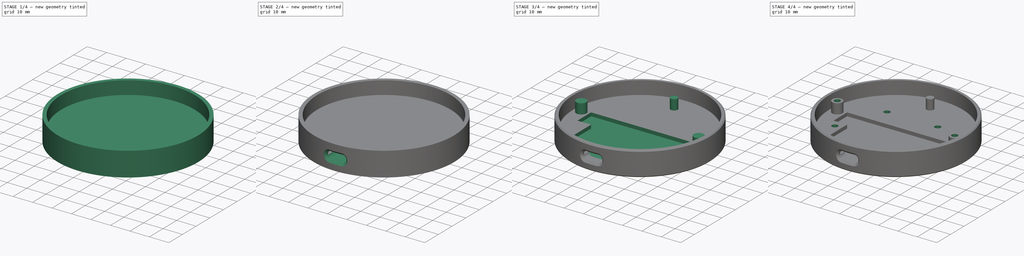
[diagram: build sequence overview — one tinted view per stage of 4, left to right]
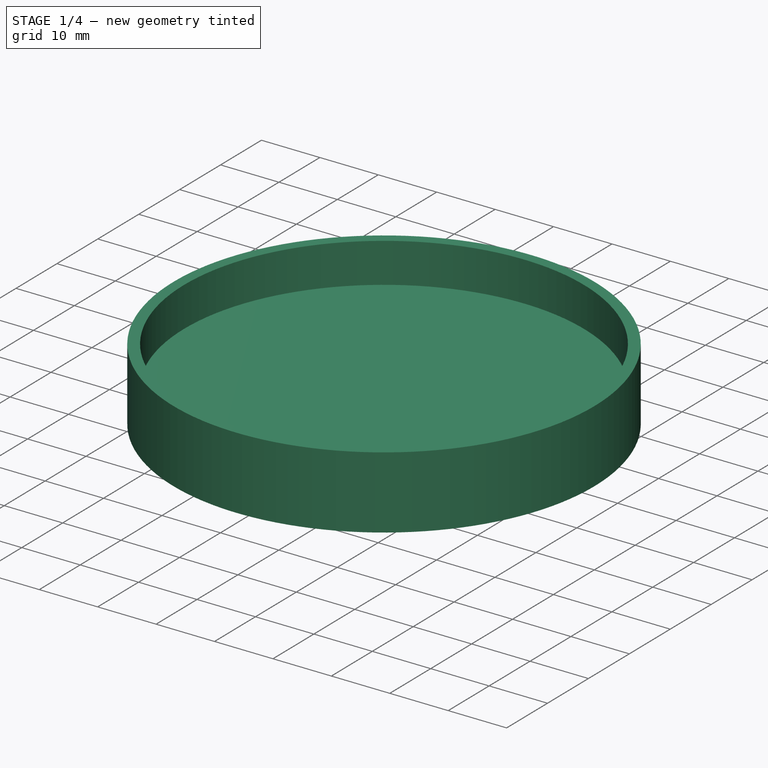
[diagram: stage 1 of 4 — iso view after this stage's code; geometry added in this stage tinted green]
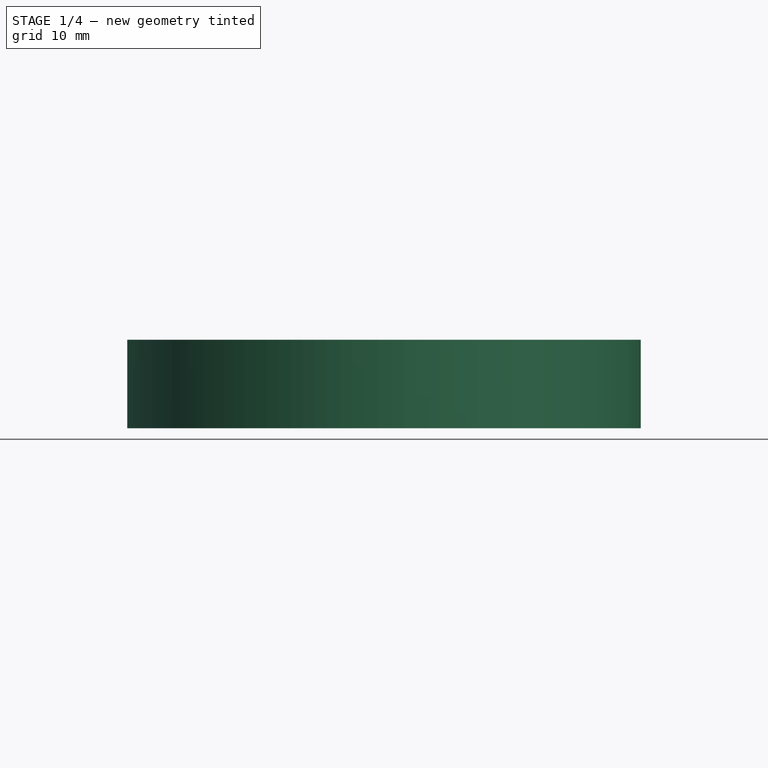
[diagram: stage 1 of 4 — front view after this stage's code; geometry added in this stage tinted green]
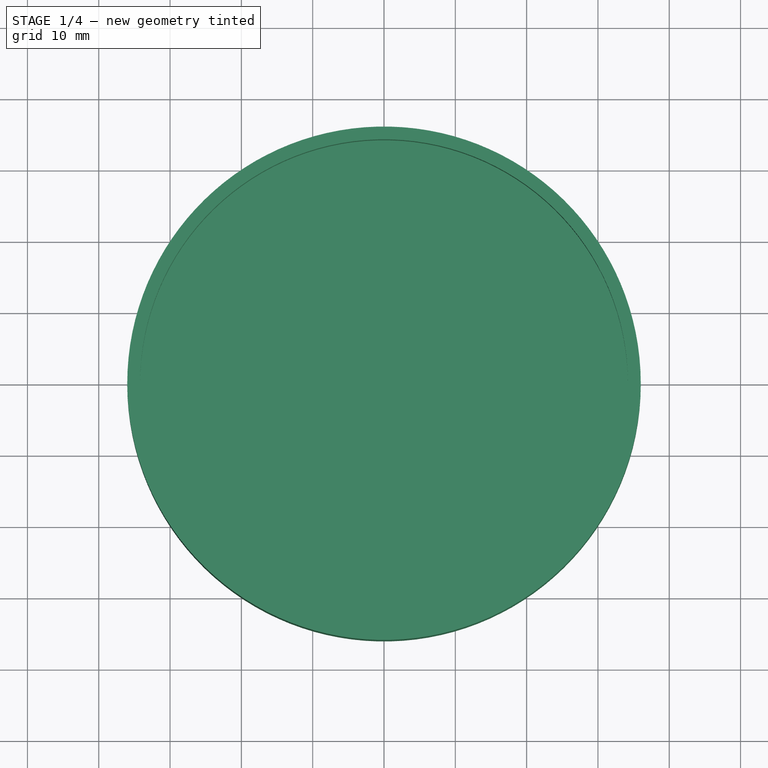
[diagram: stage 1 of 4 — top view after this stage's code; geometry added in this stage tinted green]
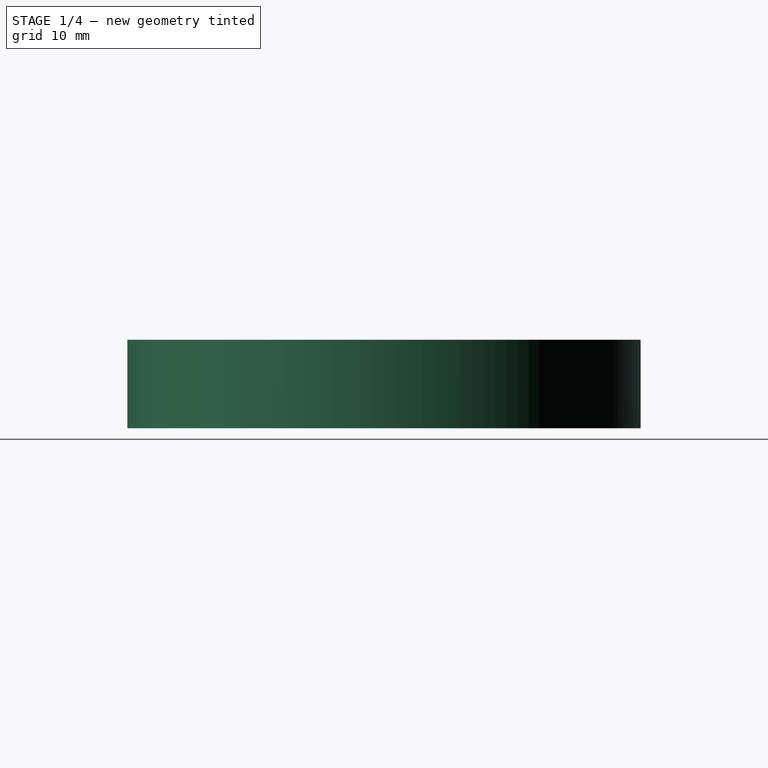
[diagram: stage 1 of 4 — right view after this stage's code; geometry added in this stage tinted green]
FCSTD DOCUMENT  (FreeCAD 0.20R29603 (Git))
Label: case
License: All rights reserved
LicenseURL: http://en.wikipedia.org/wiki/All_rights_reserved
objects: Sketcher::SketchObject×7, PartDesign::Pocket×4, PartDesign::Pad×3, PartDesign::Chamfer×2, PartDesign::Plane×1, PartDesign::Body×1
note: 27 computed .brp shape members not serialized (recipe doc carries the construction recipe); baked Part::Feature solids carry a one-line shape summary decoded from their .brp

FEATURE [Sketcher::SketchObject] Sketch
  FullyConstrained = true
  MapMode = 5
  Support = -> [XY_Plane]
  sketch-geometry (1):
    g0: Circle CenterX=0 CenterY=0 CenterZ=0 NormalX=0 NormalY=0 NormalZ=1 AngleXU=0 Radius=36
  constraints (2):
    c: Coincident(g0,g-1)
    c: Radius(g0) = 36
FEATURE [PartDesign::Pad] Pad  label="base"
  Direction = (0,0,1)
  Length = 5.6
  Length2 = 10
  Profile = -> Sketch
  ReferenceAxis = -> Sketch [N_Axis]
  Type = 0
FEATURE [Sketcher::SketchObject] Sketch001
  ExternalGeometry = -> [Pad]
  FullyConstrained = true
  MapMode = 5
  Placement = pos=(0,0,5.6) rot=(0,0,1;0rad)
  Support = -> [Pad]
  sketch-geometry (2):
    g0: Circle CenterX=0 CenterY=0 CenterZ=0 NormalX=0 NormalY=0 NormalZ=1 AngleXU=0 Radius=34.2
    g1: Circle CenterX=0 CenterY=0 CenterZ=0 NormalX=0 NormalY=0 NormalZ=1 AngleXU=0 Radius=36
  constraints (4):
    c: Coincident(g0,g-1)
    c: Coincident(g1,g0)
    c: Equal(g1,g-3)
    c: Radius(g0) = 34.2
FEATURE [PartDesign::Pad] Pad001  label="walls"
  BaseFeature = -> Pad
  Direction = (0,0,1)
  Length = 6.8
  Length2 = 10
  Profile = -> Sketch001
  ReferenceAxis = -> Sketch001 [N_Axis]
  Type = 0
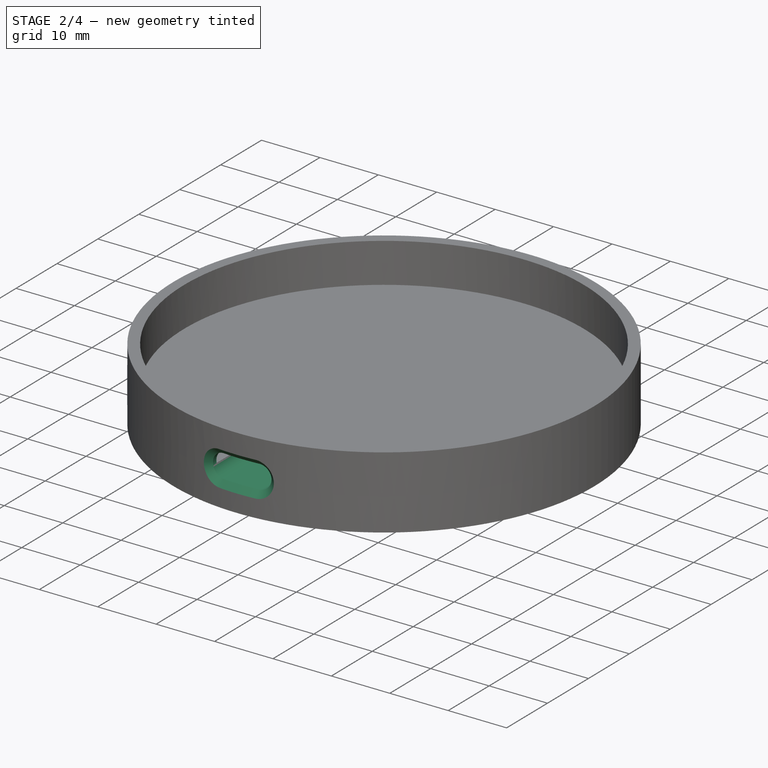
[diagram: stage 2 of 4 — iso view after this stage's code; geometry added in this stage tinted green]
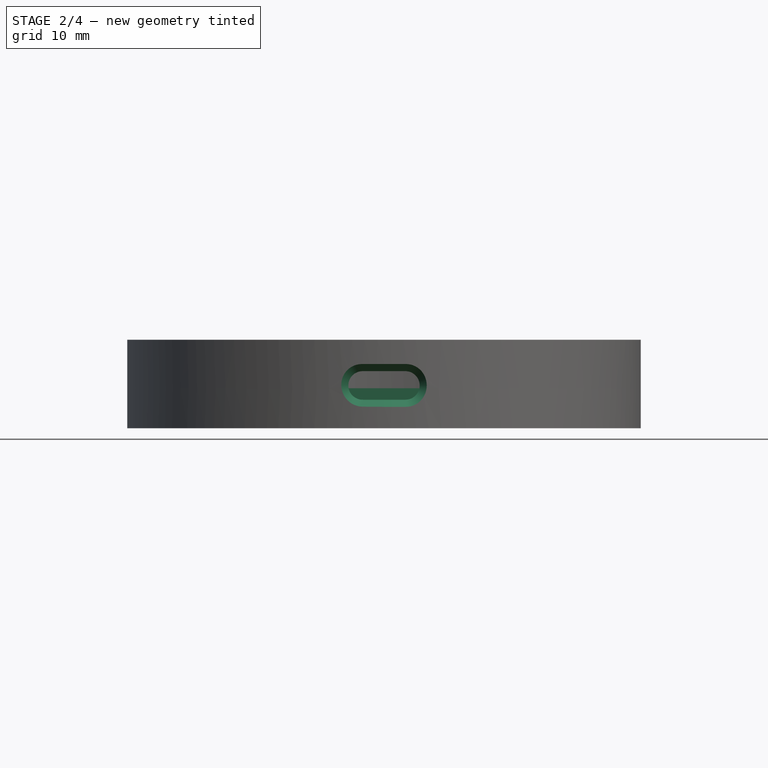
[diagram: stage 2 of 4 — front view after this stage's code; geometry added in this stage tinted green]
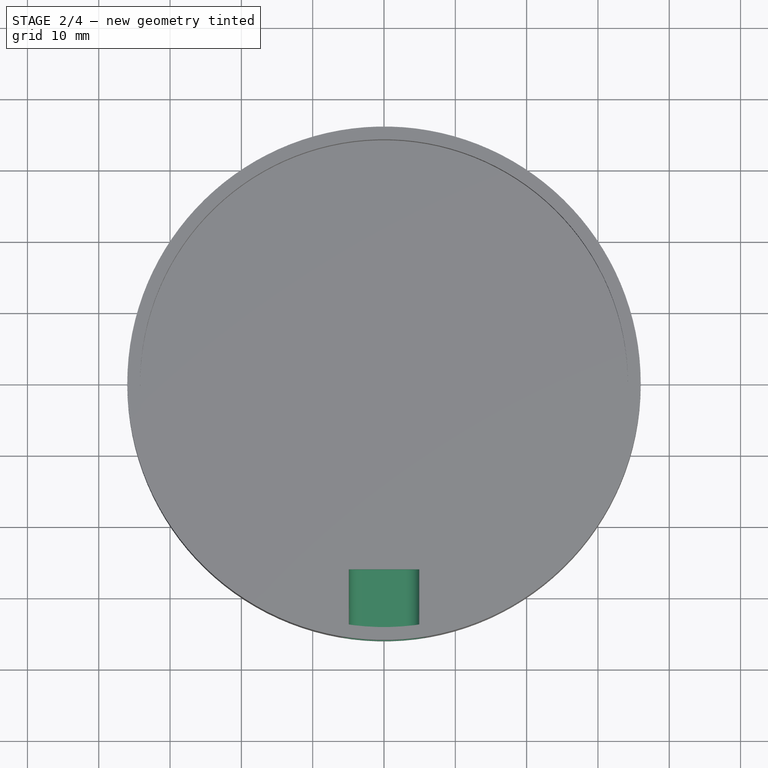
[diagram: stage 2 of 4 — top view after this stage's code; geometry added in this stage tinted green]
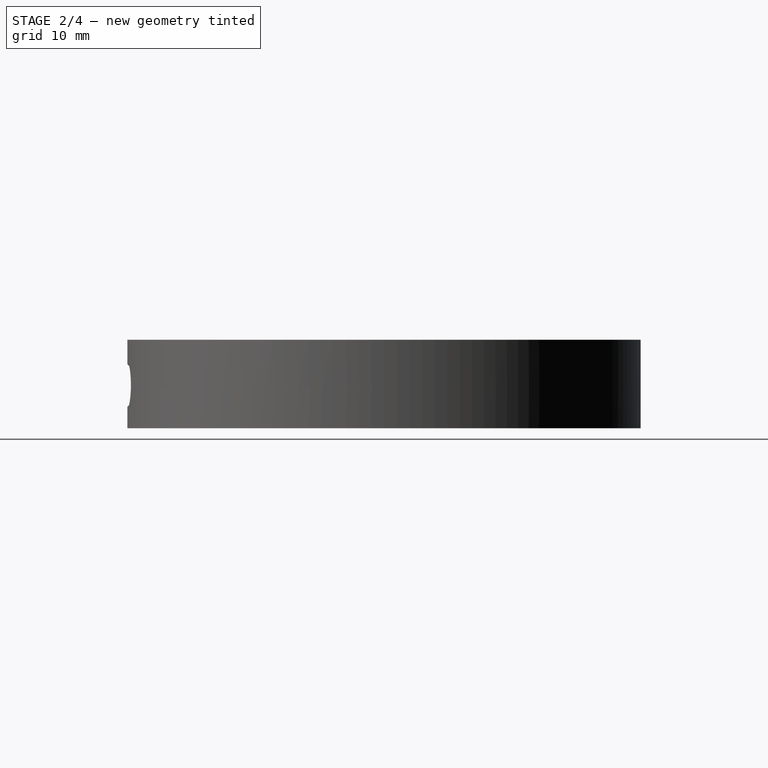
[diagram: stage 2 of 4 — right view after this stage's code; geometry added in this stage tinted green]
FEATURE [PartDesign::Plane] DatumPlane  label="Receptacle-Hole-Start"
  AttachmentOffset = pos=(0,0,36) rot=(0,0,1;0rad)
  Length = 83.9822
  MapMode = 5
  Placement = pos=(0,-36,-8e-15) rot=(1,0,0;1.5708rad)
  ResizeMode = 0
  Support = -> [XZ_Plane]
  Width = 61.9986
FEATURE [Sketcher::SketchObject] Sketch003  label="usbc-outline"
  FullyConstrained = true
  MapMode = 5
  Placement = pos=(0,-36,-8e-15) rot=(1,0,0;1.5708rad)
  Support = -> [DatumPlane]
  sketch-geometry (7):
    g0: LineSegment StartX=0 StartY=6 StartZ=0 EndX=3 EndY=4 EndZ=0
    g1: ArcOfCircle CenterX=-3 CenterY=6 CenterZ=0 NormalX=0 NormalY=0 NormalZ=1 AngleXU=0 Radius=2 StartAngle=1.5708 EndAngle=4.71239
    g2: ArcOfCircle CenterX=3 CenterY=6 CenterZ=0 NormalX=0 NormalY=0 NormalZ=1 AngleXU=0 Radius=2 StartAngle=4.71239 EndAngle=7.85398
    g3: LineSegment StartX=-3 StartY=4 StartZ=0 EndX=3 EndY=4 EndZ=0
    g4: LineSegment StartX=3 StartY=8 StartZ=0 EndX=-3 EndY=8 EndZ=0
    g5: LineSegment StartX=-3 StartY=6 StartZ=0 EndX=3 EndY=6 EndZ=0
    g6: LineSegment StartX=-3 StartY=8 StartZ=0 EndX=0 EndY=6 EndZ=0
  constraints (17):
    c: PointOnObject(g0,g-2)
    c: DistanceY(g-1,g0) = 6
    c: Tangent(g1,g3) = -1.5708
    c: Tangent(g3,g2) = -1.5708
    c: Tangent(g2,g4) = -1.5708
    c: Tangent(g4,g1) = -1.5708
    c: Equal(g1,g2)
    c: Horizontal(g3)
    c: DistanceY(g1,g1) = 4
    c: Coincident(g5,g1)
    c: Coincident(g5,g2)
    c: Coincident(g2,g0)
    c: PointOnObject(g0,g5)
    c: Coincident(g6,g1)
    c: Coincident(g6,g0)
    c: Parallel(g6,g0)
    c: DistanceX(g4,g4) = 6
FEATURE [PartDesign::Pocket] Pocket006  label="receptacle-hole"
  BaseFeature = -> Pad001
  Direction = (0,1,2e-16)
  Length = 10
  Length2 = 5
  Profile = -> Sketch003
  ReferenceAxis = -> Sketch003 [N_Axis]
  Type = 0
FEATURE [PartDesign::Chamfer] Chamfer  label="receptacle-chamfer"
  Angle = 45
  Base = -> Pocket006 [Edge5]
  BaseFeature = -> Pocket006
  ChamferType = 0
  FlipDirection = false
  Size = 1
  Size2 = 1
  SupportTransform = false
  UseAllEdges = false
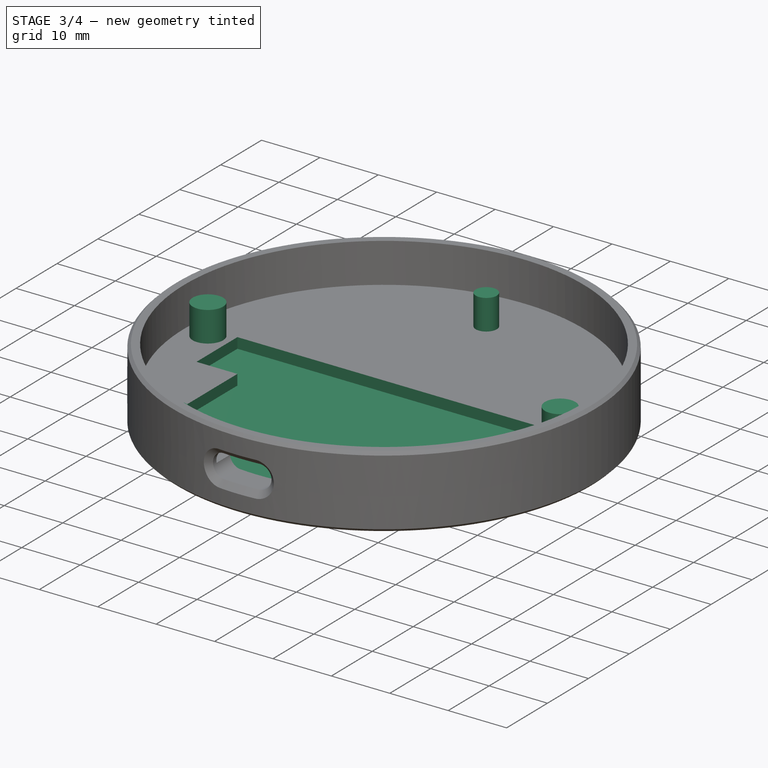
[diagram: stage 3 of 4 — iso view after this stage's code; geometry added in this stage tinted green]
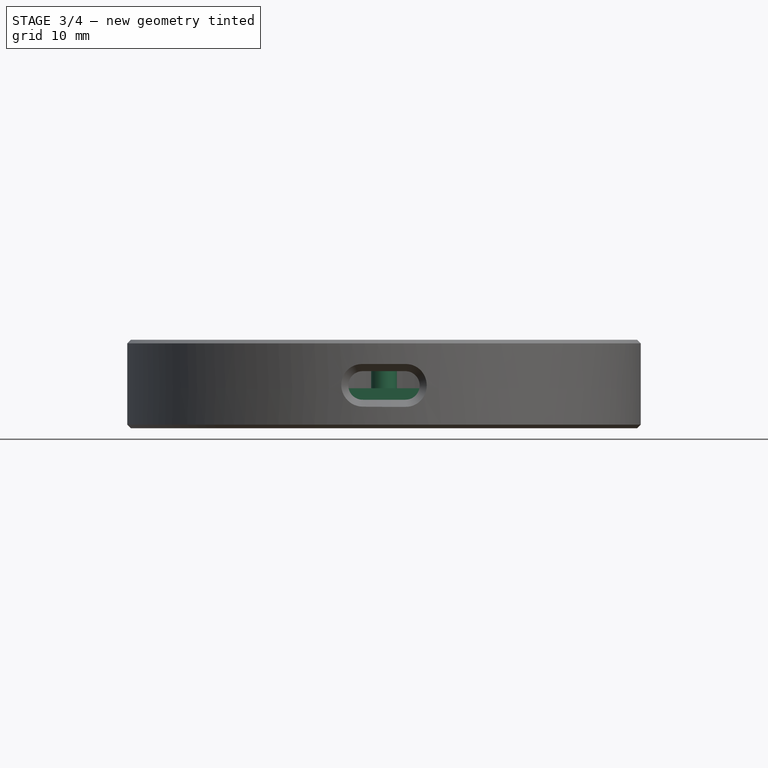
[diagram: stage 3 of 4 — front view after this stage's code; geometry added in this stage tinted green]
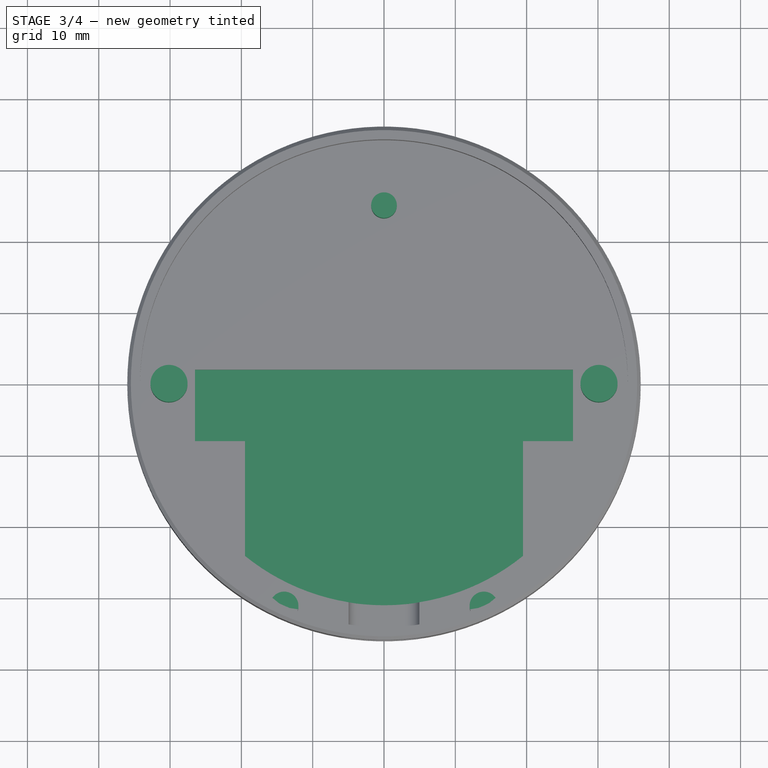
[diagram: stage 3 of 4 — top view after this stage's code; geometry added in this stage tinted green]
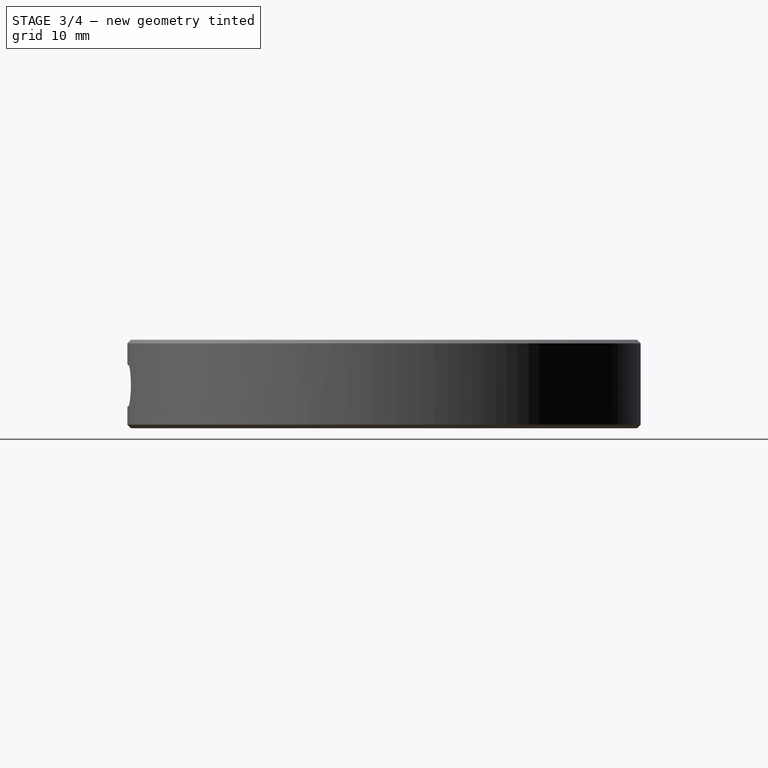
[diagram: stage 3 of 4 — right view after this stage's code; geometry added in this stage tinted green]
FEATURE [PartDesign::Chamfer] Chamfer001  label="top-bot-chamfer"
  Angle = 45
  Base = -> Chamfer [Edge12,Edge5]
  BaseFeature = -> Chamfer
  ChamferType = 0
  FlipDirection = false
  Size = 0.5
  Size2 = 1
  SupportTransform = false
  UseAllEdges = false
FEATURE [Sketcher::SketchObject] Sketch011
  FullyConstrained = true
  MapMode = 5
  Placement = pos=(0,0,5.6) rot=(0,0,1;0rad)
  sketch-geometry (14):
    g0: LineSegment StartX=26.5 StartY=2 StartZ=0 EndX=0 EndY=2 EndZ=0
    g1: LineSegment StartX=0 StartY=2 StartZ=0 EndX=-26.5 EndY=2 EndZ=0
    g2: LineSegment StartX=-26.5 StartY=2 StartZ=0 EndX=-26.5 EndY=0 EndZ=0
    g3: LineSegment StartX=26.5 StartY=2 StartZ=0 EndX=26.5 EndY=0 EndZ=0
    g4: Circle CenterX=0 CenterY=0 CenterZ=0 NormalX=0 NormalY=0 NormalZ=1 AngleXU=0 Radius=31
    g5: LineSegment StartX=-26.5 StartY=0 StartZ=0 EndX=-26.5 EndY=-8 EndZ=0
    g6: LineSegment StartX=26.5 StartY=-8 StartZ=0 EndX=26.5 EndY=0 EndZ=0
    g7: ArcOfCircle CenterX=-3.2e-15 CenterY=-7e-16 CenterZ=0 NormalX=0 NormalY=0 NormalZ=1 AngleXU=0 Radius=31 StartAngle=4.03208 EndAngle=5.3927
    g8: LineSegment StartX=-19.5 StartY=-24.0988 StartZ=0 EndX=0 EndY=-24.0988 EndZ=0
    g9: LineSegment StartX=0 StartY=-24.0988 StartZ=0 EndX=19.5 EndY=-24.0988 EndZ=0
    g10: LineSegment StartX=-19.5 StartY=-24.0988 StartZ=0 EndX=-19.5 EndY=-8 EndZ=0
    g11: LineSegment StartX=-26.5 StartY=-8 StartZ=0 EndX=-19.5 EndY=-8 EndZ=0
    g12: LineSegment StartX=19.5 StartY=-24.0988 StartZ=0 EndX=19.5 EndY=-8 EndZ=0
    g13: LineSegment StartX=19.5 StartY=-8 StartZ=0 EndX=26.5 EndY=-8 EndZ=0
  constraints (42):
    c: PointOnObject(g0,g-2)
    c: Horizontal(g0)
    c: Coincident(g0,g1)
    c: Horizontal(g1)
    c: Coincident(g1,g2)
    c: PointOnObject(g2,g-1)
    c: Vertical(g2)
    c: Coincident(g0,g3)
    c: PointOnObject(g3,g-1)
    c: Vertical(g3)
    c: Equal(g0,g1)
    c: DistanceY(g3,g3) = 2
    c: DistanceX(g1,g1) = 26.5
    c: Coincident(g4,g-1)
    c: Radius(g4) = 31
    c: PointOnObject(g7,g4)
    c: Coincident(g2,g5)
    c: Vertical(g5)
    c: Coincident(g6,g3)
    c: Vertical(g6)
    c: PointOnObject(g7,g4)
    c: Tangent(g7,g4)
    c: PointOnObject(g8,g-2)
    c: Horizontal(g8)
    c: Coincident(g9,g8)
    c: Horizontal(g9)
    c: DistanceX(g9,g9) = 19.5
    c: Equal(g5,g6)
    c: DistanceY(g6,g6) = 8
    c: Coincident(g10,g7)
    c: Vertical(g10)
    c: Coincident(g11,g5)
    c: Coincident(g11,g10)
    c: Horizontal(g11)
    c: Coincident(g7,g8)
    c: Equal(g8,g9)
    c: Coincident(g12,g7)
    c: Vertical(g12)
    c: Equal(g12,g10)
    c: Coincident(g13,g12)
    c: Coincident(g13,g6)
    c: Horizontal(g13)
FEATURE [PartDesign::Pocket] Pocket008  label="component-cutout"
  BaseFeature = -> Chamfer001
  Direction = (0,0,-1)
  Length = 1.8
  Length2 = 5
  Profile = -> Sketch011
  ReferenceAxis = -> Sketch011 [N_Axis]
  Type = 0
FEATURE [Sketcher::SketchObject] Sketch012  label="screw-hole-sketch"
  FullyConstrained = true
  MapMode = 5
  Placement = pos=(0,0,0) rot=(1,0,0;3.14159rad)
  Support = -> [Pocket008]
  sketch-geometry (12):
    g0: Circle CenterX=-30.15 CenterY=0 CenterZ=0 NormalX=0 NormalY=0 NormalZ=1 AngleXU=0 Radius=1.5
    g1: Circle CenterX=30.15 CenterY=0 CenterZ=0 NormalX=0 NormalY=0 NormalZ=1 AngleXU=0 Radius=1.5
    g2: LineSegment StartX=-30.15 StartY=0 StartZ=0 EndX=0 EndY=0 EndZ=0
    g3: LineSegment StartX=0 StartY=0 StartZ=0 EndX=30.15 EndY=0 EndZ=0
    g4: Circle CenterX=-13 CenterY=-12 CenterZ=0 NormalX=0 NormalY=0 NormalZ=1 AngleXU=0 Radius=1.5
    g5: Circle CenterX=13 CenterY=-12 CenterZ=0 NormalX=0 NormalY=0 NormalZ=1 AngleXU=0 Radius=1.5
    g6: LineSegment StartX=13 StartY=-12 StartZ=0 EndX=0 EndY=-12 EndZ=0
    g7: LineSegment StartX=-13 StartY=-12 StartZ=0 EndX=0 EndY=-12 EndZ=0
    g8: Circle CenterX=-23 CenterY=12 CenterZ=0 NormalX=0 NormalY=0 NormalZ=1 AngleXU=0 Radius=1.5
    g9: Circle CenterX=23 CenterY=12 CenterZ=0 NormalX=0 NormalY=0 NormalZ=1 AngleXU=0 Radius=1.5
    g10: LineSegment StartX=-23 StartY=12 StartZ=0 EndX=0 EndY=12 EndZ=0
    g11: LineSegment StartX=0 StartY=12 StartZ=0 EndX=23 EndY=12 EndZ=0
  constraints (32):
    c: PointOnObject(g0,g-1)
    c: Diameter(g0) = 3
    c: DistanceX(g0,g-1) = 30.15
    c: PointOnObject(g1,g-1)
    c: Coincident(g2,g0)
    c: Coincident(g2,g-1)
    c: Coincident(g3,g1)
    c: Equal(g3,g2)
    c: Equal(g1,g0)
    c: Coincident(g3,g2)
    c: Coincident(g6,g5)
    c: PointOnObject(g6,g-2)
    c: Horizontal(g6)
    c: Coincident(g7,g4)
    c: Coincident(g7,g6)
    c: Horizontal(g7)
    c: Equal(g7,g6)
    c: Equal(g5,g0)
    c: Equal(g4,g0)
    c: DistanceX(g4,g-1) = 13
    c: DistanceY(g4,g2) = 12
    c: Equal(g8,g0)
    c: DistanceY(g2,g8) = 12
    c: DistanceX(g8,g2) = 23
    c: Equal(g9,g0)
    c: Coincident(g10,g8)
    c: PointOnObject(g10,g-2)
    c: Horizontal(g10)
    c: Coincident(g11,g10)
    c: Coincident(g11,g9)
    c: Horizontal(g11)
    c: Equal(g11,g10)
FEATURE [Sketcher::SketchObject] Sketch013
  ExternalGeometry = -> [Sketch012]
  FullyConstrained = true
  MapMode = 5
  Placement = pos=(0,0,0) rot=(1,0,0;3.14159rad)
  Support = -> [Pocket008]
  sketch-geometry (72):
    g0: ArcOfCircle CenterX=-32.45 CenterY=2.3 CenterZ=0 NormalX=0 NormalY=0 NormalZ=1 AngleXU=0 Radius=0.3 StartAngle=1.5708 EndAngle=3.14159
    g1: LineSegment StartX=-32.45 StartY=2.6 StartZ=0 EndX=-27.85 EndY=2.6 EndZ=0
    g2: ArcOfCircle CenterX=-27.85 CenterY=2.3 CenterZ=0 NormalX=0 NormalY=0 NormalZ=1 AngleXU=0 Radius=0.3 StartAngle=-9e-16 EndAngle=1.5708
    g3: LineSegment StartX=-27.55 StartY=2.3 StartZ=0 EndX=-27.55 EndY=-2.3 EndZ=0
    g4: ArcOfCircle CenterX=-27.85 CenterY=-2.3 CenterZ=0 NormalX=0 NormalY=0 NormalZ=1 AngleXU=0 Radius=0.3 StartAngle=4.71239 EndAngle=6.28319
    g5: LineSegment StartX=-27.85 StartY=-2.6 StartZ=0 EndX=-32.45 EndY=-2.6 EndZ=0
    g6: ArcOfCircle CenterX=-32.45 CenterY=-2.3 CenterZ=0 NormalX=0 NormalY=0 NormalZ=1 AngleXU=0 Radius=0.3 StartAngle=3.14159 EndAngle=4.71239
    g7: LineSegment StartX=-32.75 StartY=-2.3 StartZ=0 EndX=-32.75 EndY=2.3 EndZ=0
    g8: GeomPoint X=-32.75 Y=2.6 Z=0
    g9: GeomPoint X=-27.55 Y=-2.6 Z=0
    g10: LineSegment StartX=-32.45 StartY=2.3 StartZ=0 EndX=-30.15 EndY=0 EndZ=0
    g11: LineSegment StartX=-30.15 StartY=0 StartZ=0 EndX=-27.85 EndY=-2.3 EndZ=0
    g12: ArcOfCircle CenterX=-15.3 CenterY=-9.7 CenterZ=0 NormalX=0 NormalY=0 NormalZ=1 AngleXU=0 Radius=0.3 StartAngle=1.5708 EndAngle=3.14159
    g13: LineSegment StartX=-15.3 StartY=-9.4 StartZ=0 EndX=-10.7 EndY=-9.4 EndZ=0
    g14: ArcOfCircle CenterX=-10.7 CenterY=-9.7 CenterZ=0 NormalX=0 NormalY=0 NormalZ=1 AngleXU=0 Radius=0.3 StartAngle=-1.8e-15 EndAngle=1.5708
    g15: LineSegment StartX=-10.4 StartY=-9.7 StartZ=0 EndX=-10.4 EndY=-14.3 EndZ=0
    g16: ArcOfCircle CenterX=-10.7 CenterY=-14.3 CenterZ=0 NormalX=0 NormalY=0 NormalZ=1 AngleXU=0 Radius=0.3 StartAngle=4.71239 EndAngle=6.28319
    g17: LineSegment StartX=-10.7 StartY=-14.6 StartZ=0 EndX=-15.3 EndY=-14.6 EndZ=0
    g18: ArcOfCircle CenterX=-15.3 CenterY=-14.3 CenterZ=0 NormalX=0 NormalY=0 NormalZ=1 AngleXU=0 Radius=0.3 StartAngle=3.14159 EndAngle=4.71239
    g19: LineSegment StartX=-15.6 StartY=-14.3 StartZ=0 EndX=-15.6 EndY=-9.7 EndZ=0
    g20: GeomPoint X=-15.6 Y=-9.4 Z=0
    g21: GeomPoint X=-10.4 Y=-14.6 Z=0
    g22: LineSegment StartX=-15.3 StartY=-9.7 StartZ=0 EndX=-13 EndY=-12 EndZ=0
    g23: LineSegment StartX=-10.7 StartY=-14.3 StartZ=0 EndX=-13 EndY=-12 EndZ=0
    g24: ArcOfCircle CenterX=10.7 CenterY=-9.7 CenterZ=0 NormalX=0 NormalY=0 NormalZ=1 AngleXU=0 Radius=0.3 StartAngle=1.5708 EndAngle=3.14159
    g25: LineSegment StartX=10.7 StartY=-9.4 StartZ=0 EndX=15.3 EndY=-9.4 EndZ=0
    g26: ArcOfCircle CenterX=15.3 CenterY=-9.7 CenterZ=0 NormalX=0 NormalY=0 NormalZ=1 AngleXU=0 Radius=0.3 StartAngle=-2.7e-15 EndAngle=1.5708
    g27: LineSegment StartX=15.6 StartY=-9.7 StartZ=0 EndX=15.6 EndY=-14.3 EndZ=0
    g28: ArcOfCircle CenterX=15.3 CenterY=-14.3 CenterZ=0 NormalX=0 NormalY=0 NormalZ=1 AngleXU=0 Radius=0.3 StartAngle=4.71239 EndAngle=6.28319
    g29: LineSegment StartX=15.3 StartY=-14.6 StartZ=0 EndX=10.7 EndY=-14.6 EndZ=0
    g30: ArcOfCircle CenterX=10.7 CenterY=-14.3 CenterZ=0 NormalX=0 NormalY=0 NormalZ=1 AngleXU=0 Radius=0.3 StartAngle=3.14159 EndAngle=4.71239
    g31: LineSegment StartX=10.4 StartY=-14.3 StartZ=0 EndX=10.4 EndY=-9.7 EndZ=0
    g32: GeomPoint X=10.4 Y=-9.4 Z=0
    g33: GeomPoint X=15.6 Y=-14.6 Z=0
    g34: ArcOfCircle CenterX=27.85 CenterY=2.3 CenterZ=0 NormalX=0 NormalY=0 NormalZ=1 AngleXU=0 Radius=0.3 StartAngle=1.5708 EndAngle=3.14159
    g35: LineSegment StartX=27.85 StartY=2.6 StartZ=0 EndX=32.45 EndY=2.6 EndZ=0
    g36: ArcOfCircle CenterX=32.45 CenterY=2.3 CenterZ=0 NormalX=0 NormalY=0 NormalZ=1 AngleXU=0 Radius=0.3 StartAngle=-9e-16 EndAngle=1.5708
    g37: LineSegment StartX=32.75 StartY=2.3 StartZ=0 EndX=32.75 EndY=-2.3 EndZ=0
    g38: ArcOfCircle CenterX=32.45 CenterY=-2.3 CenterZ=0 NormalX=0 NormalY=0 NormalZ=1 AngleXU=0 Radius=0.3 StartAngle=4.71239 EndAngle=6.28319
    g39: LineSegment StartX=32.45 StartY=-2.6 StartZ=0 EndX=27.85 EndY=-2.6 EndZ=0
    g40: ArcOfCircle CenterX=27.85 CenterY=-2.3 CenterZ=0 NormalX=0 NormalY=0 NormalZ=1 AngleXU=0 Radius=0.3 StartAngle=3.14159 EndAngle=4.71239
    g41: LineSegment StartX=27.55 StartY=-2.3 StartZ=0 EndX=27.55 EndY=2.3 EndZ=0
    g42: GeomPoint X=27.55 Y=2.6 Z=0
    g43: GeomPoint X=32.75 Y=-2.6 Z=0
    g44: LineSegment StartX=10.7 StartY=-9.7 StartZ=0 EndX=13 EndY=-12 EndZ=0
    g45: LineSegment StartX=13 StartY=-12 StartZ=0 EndX=15.3 EndY=-14.3 EndZ=0
    g46: LineSegment StartX=27.85 StartY=2.3 StartZ=0 EndX=30.15 EndY=0 EndZ=0
    g47: LineSegment StartX=30.15 StartY=0 StartZ=0 EndX=32.45 EndY=-2.3 EndZ=0
    g48: ArcOfCircle CenterX=-25.3 CenterY=14.3 CenterZ=0 NormalX=0 NormalY=0 NormalZ=1 AngleXU=0 Radius=0.3 StartAngle=1.5708 EndAngle=3.14159
    g49: LineSegment StartX=-25.3 StartY=14.6 StartZ=0 EndX=-20.7 EndY=14.6 EndZ=0
    g50: ArcOfCircle CenterX=-20.7 CenterY=14.3 CenterZ=0 NormalX=0 NormalY=0 NormalZ=1 AngleXU=0 Radius=0.3 StartAngle=2.7e-15 EndAngle=1.5708
    g51: LineSegment StartX=-20.4 StartY=14.3 StartZ=0 EndX=-20.4 EndY=9.7 EndZ=0
    g52: ArcOfCircle CenterX=-20.7 CenterY=9.7 CenterZ=0 NormalX=0 NormalY=0 NormalZ=1 AngleXU=0 Radius=0.3 StartAngle=4.71239 EndAngle=6.28319
    g53: LineSegment StartX=-20.7 StartY=9.4 StartZ=0 EndX=-25.3 EndY=9.4 EndZ=0
    g54: ArcOfCircle CenterX=-25.3 CenterY=9.7 CenterZ=0 NormalX=0 NormalY=0 NormalZ=1 AngleXU=0 Radius=0.3 StartAngle=3.14159 EndAngle=4.71239
    g55: LineSegment StartX=-25.6 StartY=9.7 StartZ=0 EndX=-25.6 EndY=14.3 EndZ=0
    g56: GeomPoint X=-25.6 Y=14.6 Z=0
    g57: GeomPoint X=-20.4 Y=9.4 Z=0
    g58: LineSegment StartX=-25.3 StartY=14.3 StartZ=0 EndX=-23 EndY=12 EndZ=0
    g59: LineSegment StartX=-23 StartY=12 StartZ=0 EndX=-20.7 EndY=9.7 EndZ=0
    g60: ArcOfCircle CenterX=20.7 CenterY=14.3 CenterZ=0 NormalX=0 NormalY=0 NormalZ=1 AngleXU=0 Radius=0.3 StartAngle=1.5708 EndAngle=3.14159
    g61: LineSegment StartX=20.7 StartY=14.6 StartZ=0 EndX=25.3 EndY=14.6 EndZ=0
    g62: ArcOfCircle CenterX=25.3 CenterY=14.3 CenterZ=0 NormalX=0 NormalY=0 NormalZ=1 AngleXU=0 Radius=0.3 StartAngle=2.2e-15 EndAngle=1.5708
    g63: LineSegment StartX=25.6 StartY=14.3 StartZ=0 EndX=25.6 EndY=9.7 EndZ=0
    g64: ArcOfCircle CenterX=25.3 CenterY=9.7 CenterZ=0 NormalX=0 NormalY=0 NormalZ=1 AngleXU=0 Radius=0.3 StartAngle=4.71239 EndAngle=6.28319
    g65: LineSegment StartX=25.3 StartY=9.4 StartZ=0 EndX=20.7 EndY=9.4 EndZ=0
    g66: ArcOfCircle CenterX=20.7 CenterY=9.7 CenterZ=0 NormalX=0 NormalY=0 NormalZ=1 AngleXU=0 Radius=0.3 StartAngle=3.14159 EndAngle=4.71239
    g67: LineSegment StartX=20.4 StartY=9.7 StartZ=0 EndX=20.4 EndY=14.3 EndZ=0
    g68: GeomPoint X=20.4 Y=14.6 Z=0
    g69: GeomPoint X=25.6 Y=9.4 Z=0
    g70: LineSegment StartX=20.7 StartY=14.3 StartZ=0 EndX=23 EndY=12 EndZ=0
    g71: LineSegment StartX=23 StartY=12 StartZ=0 EndX=25.3 EndY=9.7 EndZ=0
  constraints (168):
    c: Tangent(g0,g1) = 1.5708
    c: Tangent(g1,g2) = 1.5708
    c: Tangent(g2,g3) = 1.5708
    c: Tangent(g3,g4) = 1.5708
    c: Tangent(g4,g5) = 1.5708
    c: Tangent(g5,g6) = 1.5708
    c: Tangent(g6,g7) = 1.5708
    c: Tangent(g7,g0) = 1.5708
    c: Horizontal(g1)
    c: Horizontal(g5)
    c: Vertical(g3)
    c: Vertical(g7)
    c: Equal(g0,g2)
    c: Equal(g2,g4)
    c: Equal(g4,g6)
    c: PointOnObject(g8,g1)
    c: PointOnObject(g8,g7)
    c: PointOnObject(g9,g3)
    c: PointOnObject(g9,g5)
    c: Coincident(g10,g0)
    c: Coincident(g10,g-3)
    c: Coincident(g11,g10)
    c: Coincident(g11,g4)
    c: Equal(g11,g10)
    c: Parallel(g10,g11)
    c: Equal(g1,g3)
    c: Radius(g0) = 0.3
    c: DistanceY(g5,g0) = 5.2
    c: Tangent(g12,g13) = 1.5708
    c: Tangent(g13,g14) = 1.5708
    c: Tangent(g14,g15) = 1.5708
    c: Tangent(g15,g16) = 1.5708
    c: Tangent(g16,g17) = 1.5708
    c: Tangent(g17,g18) = 1.5708
    c: Tangent(g18,g19) = 1.5708
    c: Tangent(g19,g12) = 1.5708
    c: Horizontal(g13)
    c: Horizontal(g17)
    c: Vertical(g15)
    c: Vertical(g19)
    c: Equal(g12,g14)
    c: Equal(g14,g16)
    c: Equal(g16,g18)
    c: PointOnObject(g20,g13)
    c: PointOnObject(g20,g19)
    c: PointOnObject(g21,g15)
    c: PointOnObject(g21,g17)
    c: Equal(g13,g15)
    c: Equal(g15,g1)
    c: Equal(g14,g2)
    c: Coincident(g22,g12)
    c: Coincident(g22,g-4)
    c: Coincident(g23,g16)
    c: Coincident(g23,g22)
    c: Equal(g23,g22)
    c: Parallel(g22,g23)
    c: Tangent(g24,g25) = 1.5708
    c: Tangent(g25,g26) = 1.5708
    c: Tangent(g26,g27) = 1.5708
    c: Tangent(g27,g28) = 1.5708
    c: Tangent(g28,g29) = 1.5708
    c: Tangent(g29,g30) = 1.5708
    c: Tangent(g30,g31) = 1.5708
    c: Tangent(g31,g24) = 1.5708
    c: Horizontal(g25)
    c: Horizontal(g29)
    c: Vertical(g27)
    c: Vertical(g31)
    c: Equal(g24,g26)
    c: Equal(g26,g28)
    c: Equal(g28,g30)
    c: PointOnObject(g32,g25)
    c: PointOnObject(g32,g31)
    c: PointOnObject(g33,g27)
    c: PointOnObject(g33,g29)
    c: Tangent(g34,g35) = 1.5708
    c: Tangent(g35,g36) = 1.5708
    c: Tangent(g36,g37) = 1.5708
    c: Tangent(g37,g38) = 1.5708
    c: Tangent(g38,g39) = 1.5708
    c: Tangent(g39,g40) = 1.5708
    c: Tangent(g40,g41) = 1.5708
    c: Tangent(g41,g34) = 1.5708
    c: Horizontal(g35)
    c: Horizontal(g39)
    c: Vertical(g37)
    c: Vertical(g41)
    c: Equal(g34,g36)
    c: Equal(g36,g38)
    c: Equal(g38,g40)
    c: PointOnObject(g42,g35)
    c: PointOnObject(g42,g41)
    c: PointOnObject(g43,g37)
    c: PointOnObject(g43,g39)
    c: Equal(g25,g27)
    c: Equal(g27,g35)
    c: Equal(g35,g37)
    c: Equal(g37,g1)
    c: Equal(g26,g36)
    c: Equal(g36,g2)
    c: Coincident(g44,g24)
    c: Coincident(g44,g-5)
    c: Coincident(g45,g44)
    c: Coincident(g45,g28)
    c: Parallel(g45,g44)
    c: Equal(g45,g44)
    c: Coincident(g46,g34)
    c: Coincident(g46,g-6)
    c: Coincident(g47,g46)
    c: Coincident(g47,g38)
    c: Equal(g46,g47)
    c: Parallel(g46,g47)
    c: Tangent(g48,g49) = 1.5708
    c: Tangent(g49,g50) = 1.5708
    c: Tangent(g50,g51) = 1.5708
    c: Tangent(g51,g52) = 1.5708
    c: Tangent(g52,g53) = 1.5708
    c: Tangent(g53,g54) = 1.5708
    c: Tangent(g54,g55) = 1.5708
    c: Tangent(g55,g48) = 1.5708
    c: Horizontal(g49)
    c: Horizontal(g53)
    c: Vertical(g51)
    c: Vertical(g55)
    c: Equal(g48,g50)
    c: Equal(g50,g52)
    c: Equal(g52,g54)
    c: PointOnObject(g56,g49)
    c: PointOnObject(g56,g55)
    c: PointOnObject(g57,g51)
    c: PointOnObject(g57,g53)
    c: Equal(g49,g51)
    c: Equal(g51,g1)
    c: Equal(g50,g2)
    c: Coincident(g58,g48)
    c: Coincident(g58,g-7)
    c: Coincident(g59,g58)
    c: Coincident(g59,g52)
    c: Parallel(g59,g58)
    c: Equal(g58,g59)
    c: Tangent(g60,g61) = 1.5708
    c: Tangent(g61,g62) = 1.5708
    c: Tangent(g62,g63) = 1.5708
    c: Tangent(g63,g64) = 1.5708
    c: Tangent(g64,g65) = 1.5708
    c: Tangent(g65,g66) = 1.5708
    c: Tangent(g66,g67) = 1.5708
    c: Tangent(g67,g60) = 1.5708
    c: Horizontal(g61)
    c: Horizontal(g65)
    c: Vertical(g63)
    c: Vertical(g67)
    c: Equal(g60,g62)
    c: Equal(g62,g64)
    c: Equal(g64,g66)
    c: PointOnObject(g68,g61)
    c: PointOnObject(g68,g67)
    c: PointOnObject(g69,g63)
    c: PointOnObject(g69,g65)
    c: Equal(g61,g63)
    c: Equal(g63,g1)
    c: Equal(g62,g2)
    c: Coincident(g70,g60)
    c: Coincident(g70,g-8)
    c: Coincident(g71,g70)
    c: Coincident(g71,g64)
    c: Equal(g71,g70)
    c: Parallel(g70,g71)
FEATURE [Sketcher::SketchObject] Sketch014
  ExternalGeometry = -> [Sketch012]
  FullyConstrained = false
  MapMode = 5
  Placement = pos=(0,0,5.6) rot=(0,0,1;0rad)
  sketch-geometry (9):
    g0: Circle CenterX=-30.15 CenterY=0 CenterZ=0 NormalX=0 NormalY=0 NormalZ=1 AngleXU=0 Radius=2.6
    g1: Circle CenterX=30.15 CenterY=0 CenterZ=0 NormalX=0 NormalY=0 NormalZ=1 AngleXU=0 Radius=2.6
    g2: Circle CenterX=0 CenterY=25 CenterZ=0 NormalX=0 NormalY=0 NormalZ=1 AngleXU=0 Radius=1.8
    g3: ArcOfCircle CenterX=14 CenterY=-31.2032 CenterZ=0 NormalX=0 NormalY=0 NormalZ=1 AngleXU=0 Radius=2 StartAngle=0.450993 EndAngle=3.5341
    g4: ArcOfCircle CenterX=-14 CenterY=-31.2032 CenterZ=0 NormalX=0 NormalY=0 NormalZ=1 AngleXU=0 Radius=2 StartAngle=5.89068 EndAngle=8.97379
    g5: LineSegment StartX=-14 StartY=-31.2032 StartZ=0 EndX=0 EndY=-31.2032 EndZ=0
    g6: LineSegment StartX=0 StartY=-31.2032 StartZ=0 EndX=14 EndY=-31.2032 EndZ=0
    g7: ArcOfCircle CenterX=-6.005e-13 CenterY=-1.215e-12 CenterZ=0 NormalX=0 NormalY=0 NormalZ=1 AngleXU=0 Radius=34.2 StartAngle=4.23215 EndAngle=4.34913
    g8: ArcOfCircle CenterX=1.5531e-12 CenterY=-3.4137e-12 CenterZ=0 NormalX=0 NormalY=0 NormalZ=1 AngleXU=0 Radius=34.2 StartAngle=5.07565 EndAngle=5.19263
  constraints (28):
    c: Coincident(g0,g-4)
    c: Diameter(g0) = 5.2
    c: Coincident(g1,g-3)
    c: Equal(g1,g0)
    c: PointOnObject(g2,g-2)
    c: DistanceY(g-1,g2) = 25
    c: Diameter(g2) = 3.6
    c: PointOnObject(g3,g-5)
    c: PointOnObject(g3,g-5)
    c: DistanceX(g-1,g3) = 14
    c: PointOnObject(g3,g-5)
    c: Diameter(g3) = 4
    c: PointOnObject(g4,g-5)
    c: PointOnObject(g4,g-5)
    c: Coincident(g5,g4)
    c: PointOnObject(g5,g-2)
    c: Horizontal(g5)
    c: Coincident(g6,g5)
    c: Coincident(g6,g3)
    c: Horizontal(g6)
    c: Equal(g6,g5)
    c: Equal(g4,g3)
    c: Coincident(g7,g4)
    c: Coincident(g7,g4)
    c: PointOnObject(g4,g7)
    c: Coincident(g8,g3)
    c: Coincident(g8,g3)
    c: PointOnObject(g3,g8)
FEATURE [PartDesign::Pad] Pad002  label="standoffs"
  BaseFeature = -> Pocket008
  Direction = (0,0,1)
  Length = 5.2
  Length2 = 10
  Profile = -> Sketch014
  ReferenceAxis = -> Sketch014 [N_Axis]
  Type = 0
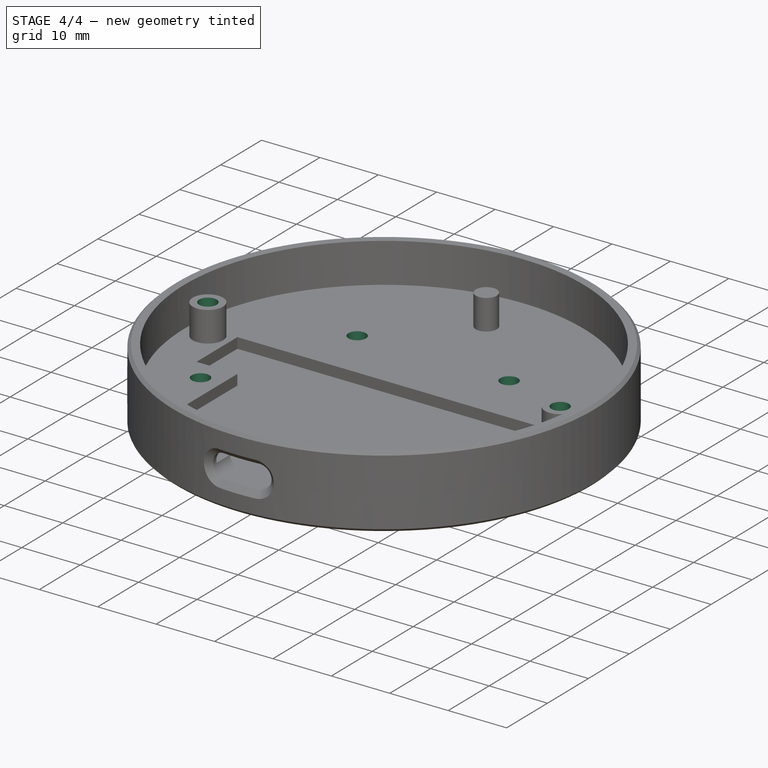
[diagram: stage 4 of 4 — iso view after this stage's code; geometry added in this stage tinted green]
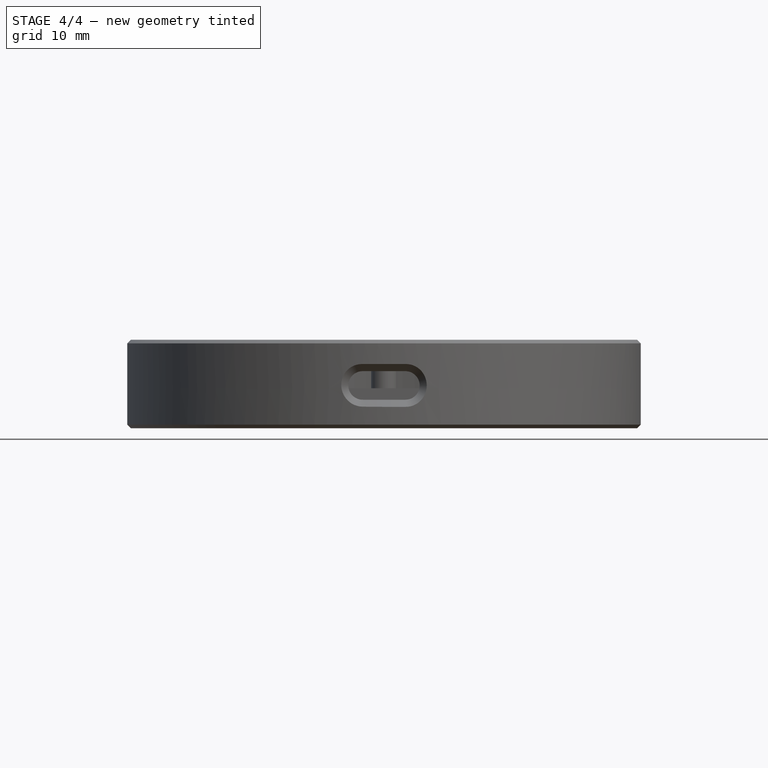
[diagram: stage 4 of 4 — front view after this stage's code; geometry added in this stage tinted green]
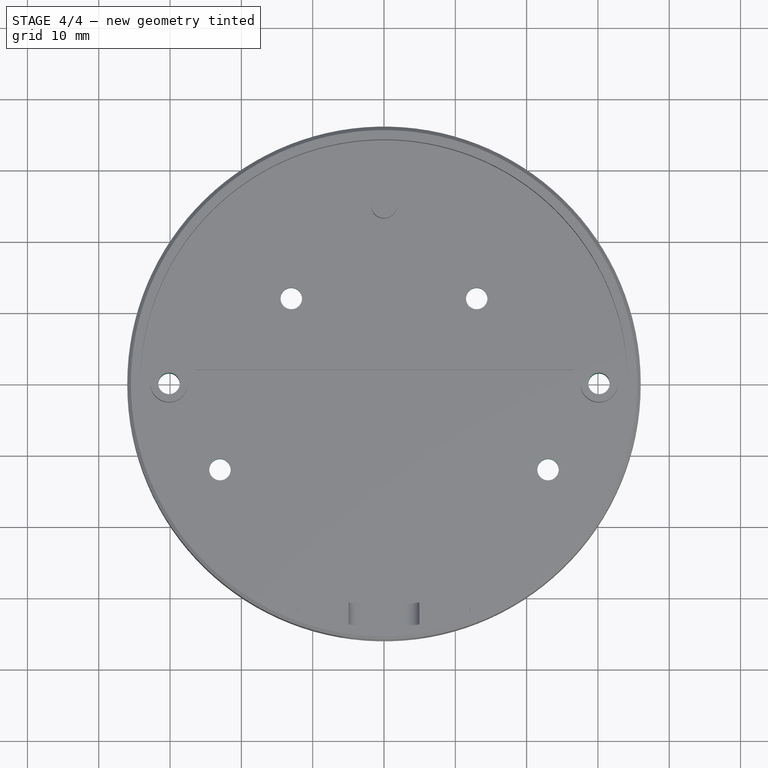
[diagram: stage 4 of 4 — top view after this stage's code; geometry added in this stage tinted green]
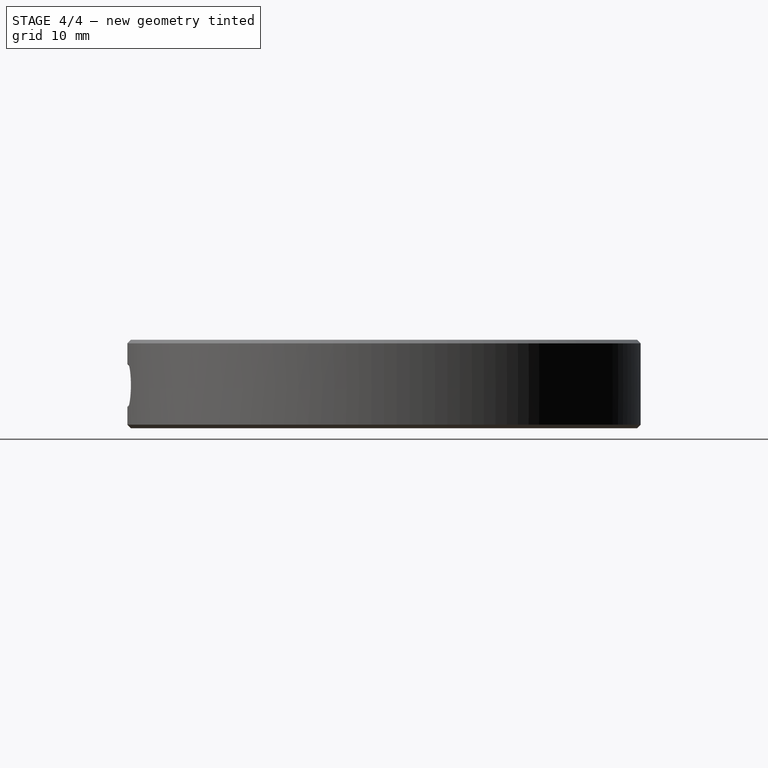
[diagram: stage 4 of 4 — right view after this stage's code; geometry added in this stage tinted green]
FEATURE [PartDesign::Pocket] Pocket  label="nut-pocket"
  BaseFeature = -> Pad002
  Direction = (0,0,1)
  Length = 2.5
  Length2 = 5
  Profile = -> Sketch013
  ReferenceAxis = -> Sketch013 [N_Axis]
  Type = 0
FEATURE [PartDesign::Pocket] Pocket009  label="screw-holes"
  BaseFeature = -> Pocket
  Direction = (0,0,1)
  Length = 5
  Length2 = 5
  Profile = -> Sketch012
  ReferenceAxis = -> Sketch012 [N_Axis]
  Type = 1
FEATURE [PartDesign::Body] Body
  Group = -> [Sketch,Pad,Sketch001,Pad001,Sketch003,DatumPlane,Pocket006,Chamfer,Chamfer001,Sketch011,Pocket008,Sketch012,Sketch013,Sketch014,Pad002,Pocket,Pocket009]
  Origin = -> Origin
  Tip = -> Pocket009
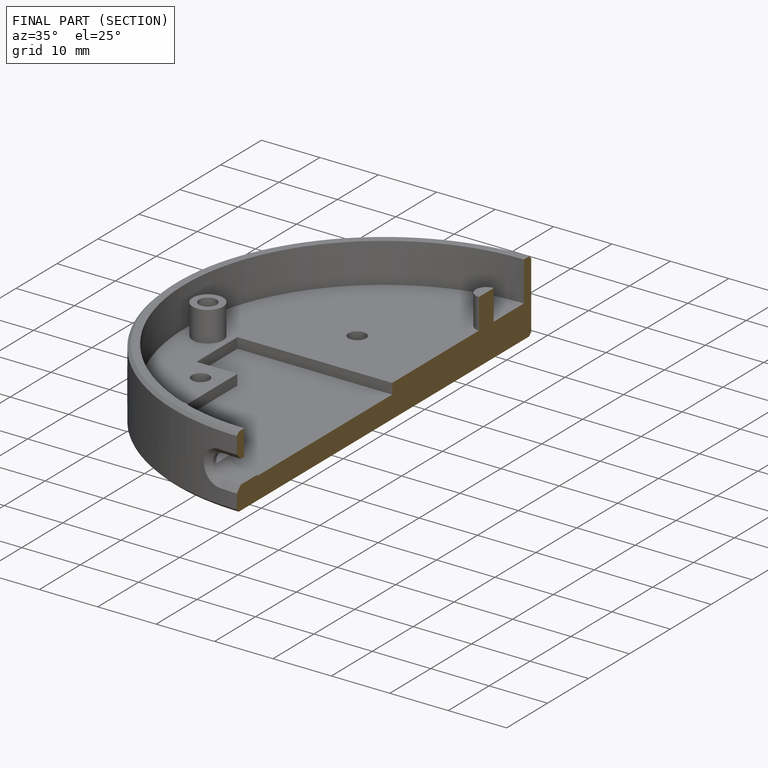
[diagram: finished part — half-section view (interior)]
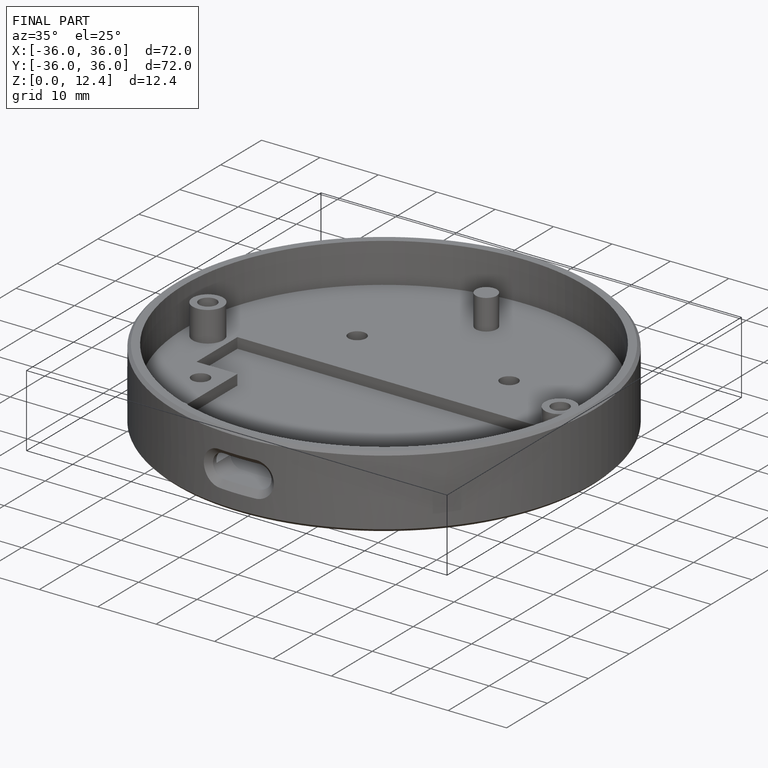
[diagram: finished part — iso view with bounding-box wireframe]
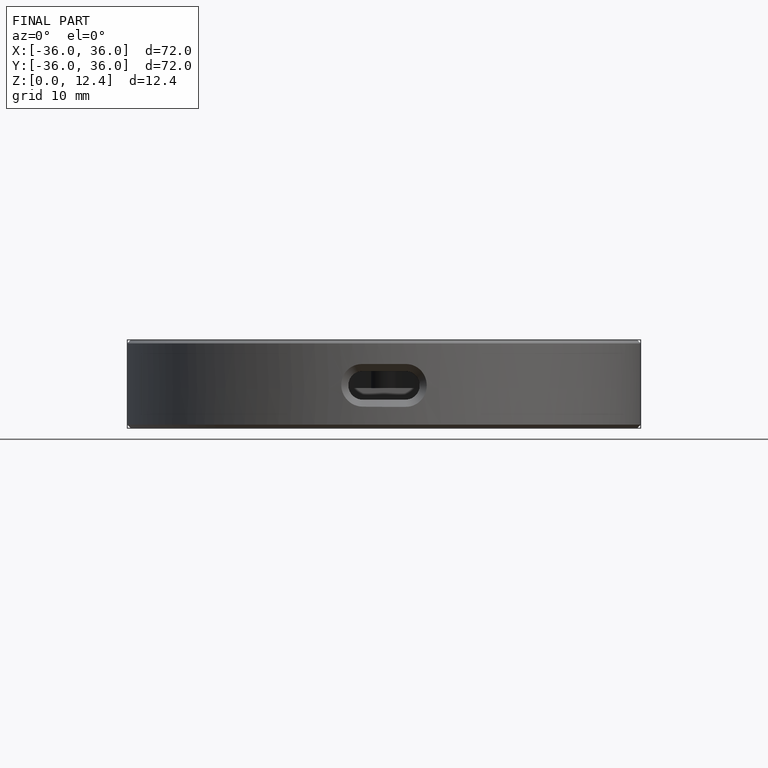
[diagram: finished part — front view with bounding-box wireframe]
